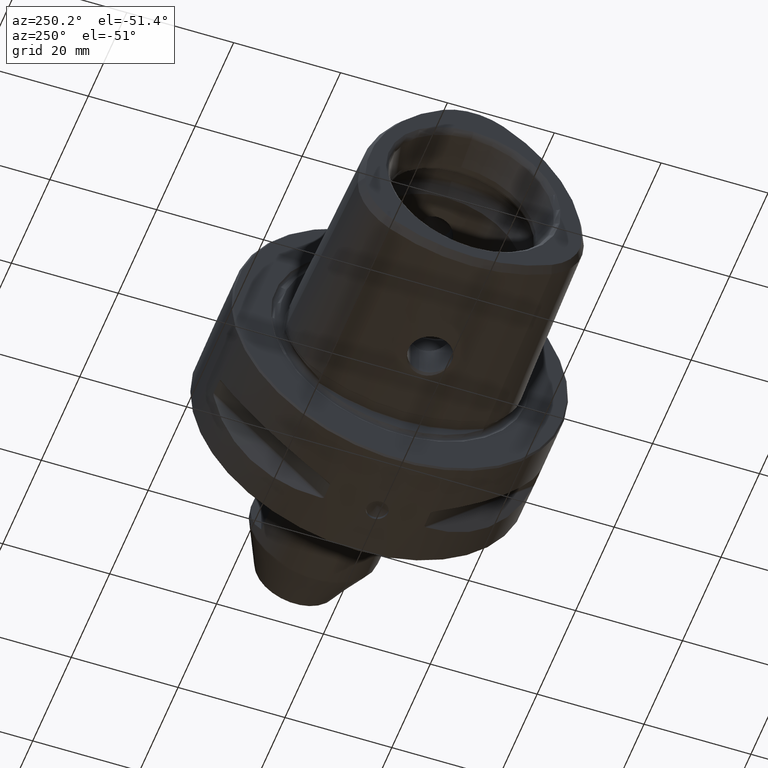
[diagram: clean part render]
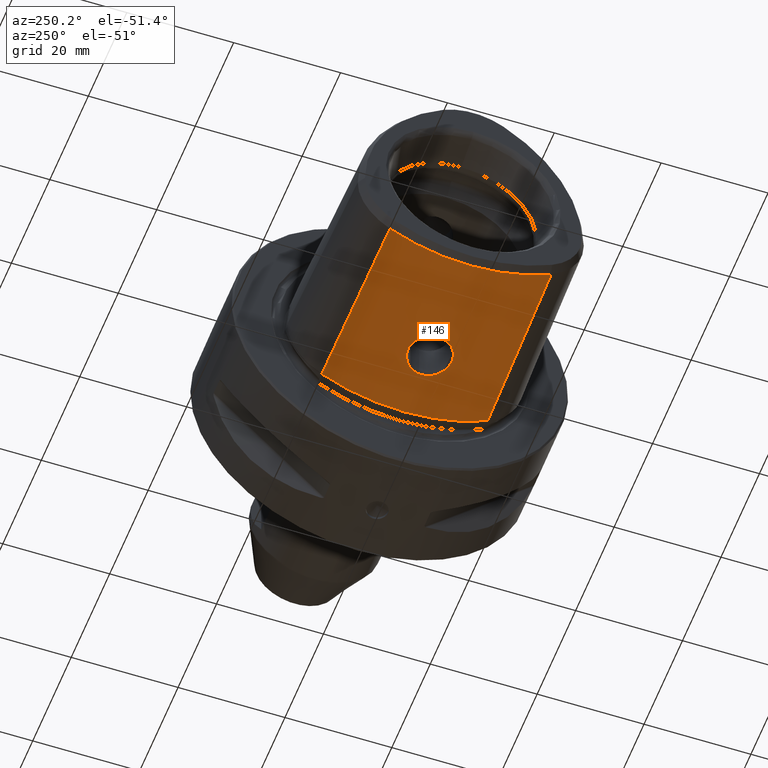
[diagram: same view with one face highlighted and labeled with its STEP entity id]
A machine part, auxiliary view. The second image highlights one B-rep face of the part: STEP entity #146.
In plain terms, the highlighted conical surface has half-angle 1.432 deg.
Its self-contained STEP definition (entity closure, byte-faithful):
#146 = ADVANCED_FACE( '', ( #388, #389 ), #390, .T. );
#388 = FACE_OUTER_BOUND( '', #769, .T. );
#389 = FACE_BOUND( '', #770, .T. );
#390 = CONICAL_SURFACE( '', #771, 31.0497422611929, 0.0249969933592226 );
#769 = EDGE_LOOP( '', ( #1172, #1173, #1174, #1175 ) );
#770 = EDGE_LOOP( '', ( #1176 ) );
#771 = AXIS2_PLACEMENT_3D( '', #1177, #1178, #1179 );
#1172 = ORIENTED_EDGE( '', *, *, #2004, .T. );
#1173 = ORIENTED_EDGE( '', *, *, #2005, .T. );
#1174 = ORIENTED_EDGE( '', *, *, #2006, .T. );
#1175 = ORIENTED_EDGE( '', *, *, #2007, .F. );
#1176 = ORIENTED_EDGE( '', *, *, #2008, .F. );
#1177 = CARTESIAN_POINT( '', ( -3.00000000000000, 1.30104260698260E-015, 10.4497422611929 ) );
#1178 = DIRECTION( '', ( 1.00000000000000, -0.000000000000000, 0.000000000000000 ) );
#1179 = DIRECTION( '', ( 0.000000000000000, 0.000000000000000, -1.00000000000000 ) );
#2004 = EDGE_CURVE( '', #2347, #2348, #2349, .T. );
#2005 = EDGE_CURVE( '', #2348, #2350, #2351, .T. );
#2006 = EDGE_CURVE( '', #2350, #2352, #2353, .T. );
#2007 = EDGE_CURVE( '', #2347, #2352, #2354, .T. );
#2008 = EDGE_CURVE( '', #2355, #2355, #2356, .T. );
#2347 = VERTEX_POINT( '', #2845 );
#2348 = VERTEX_POINT( '', #2846 );
#2349 = CIRCLE( '', #2847, 30.2101072674812 );
#2350 = VERTEX_POINT( '', #2848 );
#2351 = LINE( '', #2849, #2850 );
#2352 = VERTEX_POINT( '', #2851 );
#2353 = CIRCLE( '', #2852, 31.0677289915256 );
#2354 = LINE( '', #2853, #2854 );
#2355 = VERTEX_POINT( '', #2855 );
#2356 = B_SPLINE_CURVE_WITH_KNOTS( '', 3, ( #2856, #2857, #2858, #2859, #2860, #2861, #2862, #2863, #2864, #2865, #2866, #2867, #2868, #2869, #2870, #2871, #2872, #2873, #2874, #2875, #2876, #2877, #2878, #2879, #2880, #2881, #2882, #2883, #2884, #2885, #2886, #2887, #2888, #2889, #2890, #2891, #2892, #2893, #2894, #2895, #2896, #2897, #2898, #2899, #2900, #2901, #2902, #2903, #2904, #2905, #2906, #2907, #2908, #2909, #2910, #2911, #2912, #2913, #2914, #2915, #2916, #2917, #2918, #2919 ), .UNSPECIFIED., .T., .F., ( 2, 2, 2, 2, 2, 2, 2, 2, 2, 2, 2, 2, 2, 2, 2, 2, 2, 2, 2, 2, 2, 2, 2, 2, 2, 2, 2, 2, 2, 2, 2, 2, 2, 2 ), ( -0.000830269652060095, 0.000000000000000, 0.000830269652060104, 0.00166053930412021, 0.00249080895618031, 0.00332107860824042, 0.00415134826030052, 0.00498161791236063, 0.00581188756442073, 0.00664215721648084, 0.00747242686854094, 0.00830269652060105, 0.00913296617266115, 0.00996323582472125, 0.0107935054767814, 0.0116237751288415, 0.0124540447809016, 0.0132843144329617, 0.0141145840850218, 0.0149448537370819, 0.0157751233891420, 0.0166053930412020, 0.0174356626932621, 0.0182659323453222, 0.0190962019973823, 0.0199264716494424, 0.0215870109535626, 0.0224172806056227, 0.0232475502576828, 0.0240778199097429, 0.0249080895618030, 0.0257383592138631, 0.0265686288659232, 0.0273988985179833 ), .UNSPECIFIED. );
#2845 = CARTESIAN_POINT( '', ( -36.5824429953531, -15.1050536337408, -15.7129780834990 ) );
#2846 = CARTESIAN_POINT( '', ( -36.5824429953531, 15.1050536337404, -15.7129780834988 ) );
#2847 = AXIS2_PLACEMENT_3D( '', #4058, #4059, #4060 );
#2848 = CARTESIAN_POINT( '', ( -2.28059412649900, 15.5338644957626, -16.4557002833587 ) );
#2849 = CARTESIAN_POINT( '', ( -3.00000000000000, 15.5248711305962, -16.4401233179595 ) );
#2850 = VECTOR( '', #4061, 1000.00000000000 );
#2851 = CARTESIAN_POINT( '', ( -2.28059412649917, -15.5338644957630, -16.4557002833587 ) );
#2852 = AXIS2_PLACEMENT_3D( '', #4062, #4063, #4064 );
#2853 = CARTESIAN_POINT( '', ( -3.00000000000000, -15.5248711305966, -16.4401233179596 ) );
#2854 = VECTOR( '', #4065, 1000.00000000000 );
#2855 = CARTESIAN_POINT( '', ( -18.9197646258780, -2.41751562230440, -20.1064868000768 ) );
#2856 = CARTESIAN_POINT( '', ( -18.7477320349138, -2.63810943170221, -20.0933487249452 ) );
#2857 = CARTESIAN_POINT( '', ( -19.0917972168421, -2.19692181290660, -20.1196248752084 ) );
#2858 = CARTESIAN_POINT( '', ( -19.2389584680646, -1.96242645880159, -20.1321001796913 ) );
#2859 = CARTESIAN_POINT( '', ( -19.4833383758891, -1.46543112391950, -20.1538242800608 ) );
#2860 = CARTESIAN_POINT( '', ( -19.5807078992071, -1.20030621549893, -20.1630978404289 ) );
#2861 = CARTESIAN_POINT( '', ( -19.7145559058241, -0.663922646163063, -20.1760783975820 ) );
#2862 = CARTESIAN_POINT( '', ( -19.7526471112733, -0.390514635786934, -20.1799267133930 ) );
#2863 = CARTESIAN_POINT( '', ( -19.7688919799108, 0.167154888905180, -20.1815538369557 ) );
#2864 = CARTESIAN_POINT( '', ( -19.7463687045560, 0.445735249939169, -20.1792634175145 ) );
#2865 = CARTESIAN_POINT( '', ( -19.6432964763345, 0.988522547152964, -20.1691305626408 ) );
#2866 = CARTESIAN_POINT( '', ( -19.5613478488762, 1.25797871692857, -20.1611591116370 ) );
#2867 = CARTESIAN_POINT( '', ( -19.3444162470560, 1.76904218302924, -20.1413125426060 ) );
#2868 = CARTESIAN_POINT( '', ( -19.2104203695908, 2.01060073348560, -20.1295269802218 ) );
#2869 = CARTESIAN_POINT( '', ( -18.8928765117324, 2.46667788041872, -20.1040852655567 ) );
#2870 = CARTESIAN_POINT( '', ( -18.7098381652073, 2.67930435476358, -20.0905124415925 ) );
#2871 = CARTESIAN_POINT( '', ( -18.3103963638101, 3.06080043322408, -20.0646767418335 ) );
#2872 = CARTESIAN_POINT( '', ( -18.0908525803018, 3.23302467624647, -20.0522028336234 ) );
#2873 = CARTESIAN_POINT( '', ( -17.6215630748052, 3.53359205626879, -20.0306570799817 ) );
#2874 = CARTESIAN_POINT( '', ( -17.3757349430866, 3.65986857501353, -20.0217467099121 ) );
#2875 = CARTESIAN_POINT( '', ( -16.8627842977911, 3.86681468633345, -20.0091051721298 ) );
#2876 = CARTESIAN_POINT( '', ( -16.5929757955667, 3.94776679825321, -20.0053946911583 ) );
#2877 = CARTESIAN_POINT( '', ( -16.0498253584222, 4.05836001190726, -20.0045547392562 ) );
#2878 = CARTESIAN_POINT( '', ( -15.7754922721208, 4.08893489788933, -20.0073361553986 ) );
#2879 = CARTESIAN_POINT( '', ( -15.2213627289619, 4.10106993806117, -20.0196839829121 ) );
#2880 = CARTESIAN_POINT( '', ( -14.9405557754112, 4.08194084267969, -20.0293682165310 ) );
#2881 = CARTESIAN_POINT( '', ( -14.3952982024399, 3.99535274399868, -20.0545885618340 ) );
#2882 = CARTESIAN_POINT( '', ( -14.1280873921869, 3.92818110561229, -20.0701572095736 ) );
#2883 = CARTESIAN_POINT( '', ( -13.6047564277815, 3.74472705256874, -20.1063915951473 ) );
#2884 = CARTESIAN_POINT( '', ( -13.3501295881744, 3.62832405919291, -20.1270143871135 ) );
#2885 = CARTESIAN_POINT( '', ( -12.8731983959345, 3.35447329065620, -20.1702635683237 ) );
#2886 = CARTESIAN_POINT( '', ( -12.6481769402592, 3.19620293499989, -20.1930756596534 ) );
#2887 = CARTESIAN_POINT( '', ( -12.2267265001378, 2.83397497671748, -20.2392780962459 ) );
#2888 = CARTESIAN_POINT( '', ( -12.0344347089853, 2.63301017469658, -20.2622246777806 ) );
#2889 = CARTESIAN_POINT( '', ( -11.6957715778302, 2.20041919063598, -20.3047350412878 ) );
#2890 = CARTESIAN_POINT( '', ( -11.5472761179623, 1.96642593951631, -20.3245564668986 ) );
#2891 = CARTESIAN_POINT( '', ( -11.2996924985409, 1.46620911019981, -20.3586384312728 ) );
#2892 = CARTESIAN_POINT( '', ( -11.2040463003835, 1.20744477041083, -20.3723998113304 ) );
#2893 = CARTESIAN_POINT( '', ( -11.0686946048952, 0.672655415505454, -20.3920909031394 ) );
#2894 = CARTESIAN_POINT( '', ( -11.0291637581478, 0.392883551396015, -20.3979968160454 ) );
#2895 = CARTESIAN_POINT( '', ( -11.0123450665338, -0.161513952728901, -20.4004963335631 ) );
#2896 = CARTESIAN_POINT( '', ( -11.0339333969792, -0.436916311329066, -20.3972540559765 ) );
#2897 = CARTESIAN_POINT( '', ( -11.1373983006211, -0.984113440476336, -20.3820595387556 ) );
#2898 = CARTESIAN_POINT( '', ( -11.2192825234279, -1.25233684163220, -20.3701180099090 ) );
#2899 = CARTESIAN_POINT( '', ( -11.4350556562023, -1.76083175699247, -20.3398475068899 ) );
#2900 = CARTESIAN_POINT( '', ( -11.5712770693545, -2.00634037476262, -20.3212054056384 ) );
#2901 = CARTESIAN_POINT( '', ( -11.8885726155506, -2.46138650282085, -20.2801946236843 ) );
#2902 = CARTESIAN_POINT( '', ( -12.0684048532823, -2.67045561750956, -20.2579751329422 ) );
#2903 = CARTESIAN_POINT( '', ( -12.4687007263464, -3.05340369726902, -20.2122064088705 ) );
#2904 = CARTESIAN_POINT( '', ( -12.6893214634603, -3.22647059797400, -20.1886959867207 ) );
#2905 = CARTESIAN_POINT( '', ( -13.3849968419418, -3.67383998769970, -20.1218723334692 ) );
#2906 = CARTESIAN_POINT( '', ( -13.9100964670706, -3.88625031984380, -20.0810939089536 ) );
#2907 = CARTESIAN_POINT( '', ( -14.7203213694052, -4.05496243685356, -20.0385458381442 ) );
#2908 = CARTESIAN_POINT( '', ( -14.9982554712463, -4.08737319802529, -20.0271531609552 ) );
#2909 = CARTESIAN_POINT( '', ( -15.5547044859063, -4.10175540162247, -20.0111828958197 ) );
#2910 = CARTESIAN_POINT( '', ( -15.8303035349281, -4.08410863673227, -20.0066289085753 ) );
#2911 = CARTESIAN_POINT( '', ( -16.3763361340611, -3.99997315261070, -20.0040237601178 ) );
#2912 = CARTESIAN_POINT( '', ( -16.6495550775526, -3.93236378400301, -20.0060475560743 ) );
#2913 = CARTESIAN_POINT( '', ( -17.1737619257708, -3.75012738855662, -20.0158183639159 ) );
#2914 = CARTESIAN_POINT( '', ( -17.4248639407534, -3.63619978238827, -20.0234766947393 ) );
#2915 = CARTESIAN_POINT( '', ( -17.9047994836711, -3.36207449050664, -20.0428653254609 ) );
#2916 = CARTESIAN_POINT( '', ( -18.1353686451130, -3.19999269794678, -20.0547335401699 ) );
#2917 = CARTESIAN_POINT( '', ( -18.5558823059058, -2.83830159482095, -20.0799516358656 ) );
#2918 = CARTESIAN_POINT( '', ( -18.7477320349138, -2.63810943170221, -20.0933487249452 ) );
#2919 = CARTESIAN_POINT( '', ( -19.0917972168421, -2.19692181290660, -20.1196248752084 ) );
#4058 = CARTESIAN_POINT( '', ( -36.5824429953531, 5.36732148067776E-015, 10.4497422611929 ) );
#4059 = DIRECTION( '', ( 1.00000000000000, 0.000000000000000, 0.000000000000000 ) );
#4060 = DIRECTION( '', ( 0.000000000000000, 0.000000000000000, -1.00000000000000 ) );
#4061 = DIRECTION( '', ( 0.999687591429374, 0.0124971951066739, -0.0216457768768608 ) );
#4062 = CARTESIAN_POINT( '', ( -2.28059412649917, 1.30104260698260E-015, 10.4497422611929 ) );
#4063 = DIRECTION( '', ( -1.00000000000000, 6.12303176911189E-017, 0.000000000000000 ) );
#4064 = DIRECTION( '', ( -6.12303176911189E-017, -1.00000000000000, 0.000000000000000 ) );
#4065 = DIRECTION( '', ( 0.999687591429374, -0.0124971951066741, -0.0216457768768607 ) );